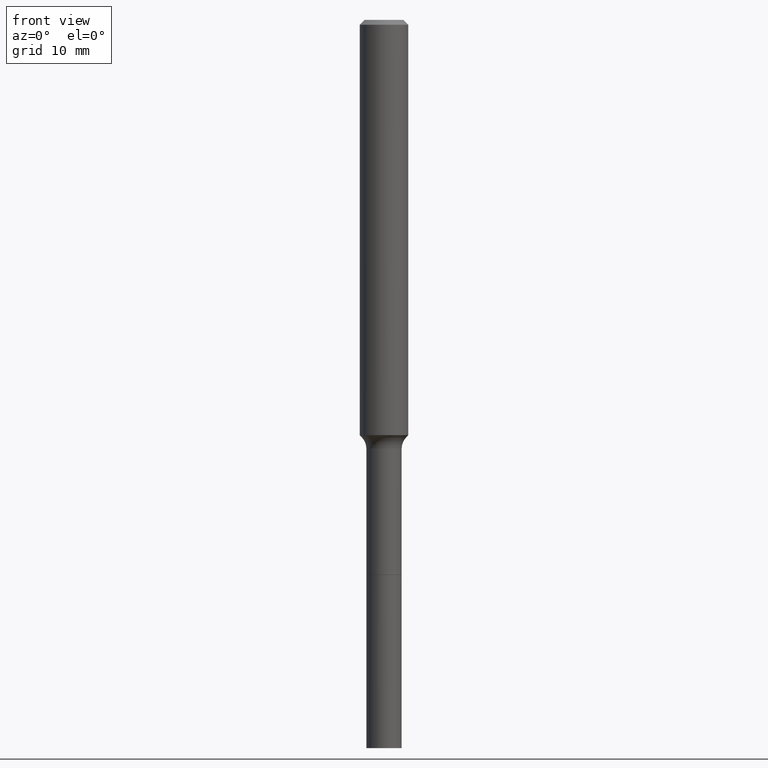
[diagram: clean part render]
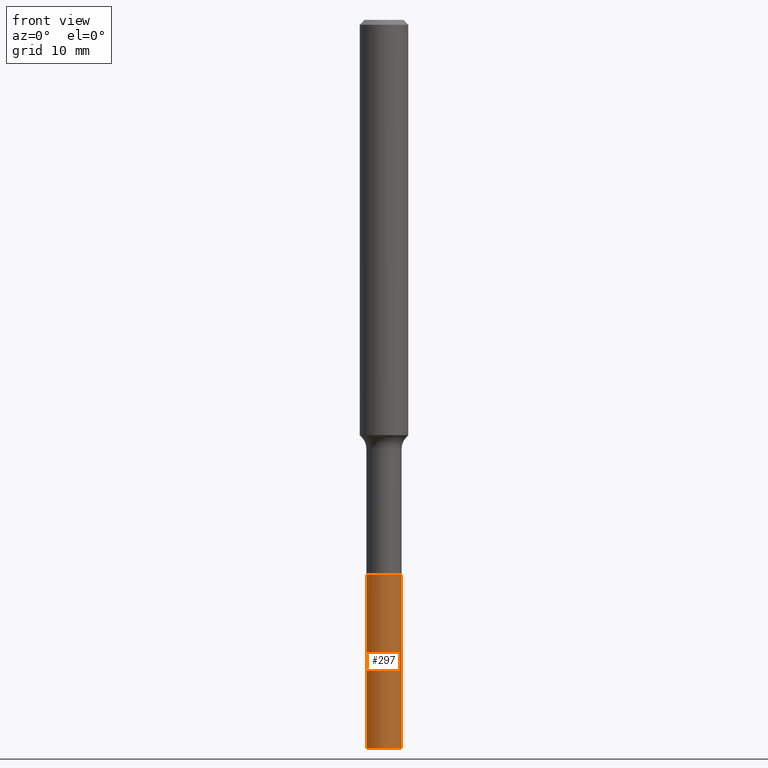
[diagram: same view with one face highlighted and labeled with its STEP entity id]
A machine part, front view. The second image highlights one B-rep face of the part: STEP entity #297.
In plain terms, the highlighted cylindrical surface (edge-blend (fillet) strip) has radius 2.1831 mm, axis along (-0, 0, 1).
Its self-contained STEP definition (entity closure, byte-faithful):
#46 = VECTOR ( 'NONE', #469, 39.37007874015748143 ) ;
#47 = DIRECTION ( 'NONE',  ( -2.445468806185136597E-29, 3.491481338843145583E-15, 1.000000000000000000 ) ) ;
#50 = DIRECTION ( 'NONE',  ( -2.445468806185136877E-29, 3.491481338843145188E-15, 1.000000000000000000 ) ) ;
#57 = CARTESIAN_POINT ( 'NONE',  ( 0.08594999999999998475, -1.002474122008643652E-14, -2.699299999999999589 ) ) ;
#92 = EDGE_CURVE ( 'NONE', #127, #432, #130, .T. ) ;
#100 = VECTOR ( 'NONE', #50, 39.37007874015748143 ) ;
#120 = ORIENTED_EDGE ( 'NONE', *, *, #161, .T. ) ;
#127 = VERTEX_POINT ( 'NONE', #254 ) ;
#130 = LINE ( 'NONE', #226, #100 ) ;
#133 = CYLINDRICAL_SURFACE ( 'NONE', #397, 0.08595000000000010965 ) ;
#141 = AXIS2_PLACEMENT_3D ( 'NONE', #341, #330, #483 ) ;
#160 = LINE ( 'NONE', #365, #46 ) ;
#161 = EDGE_CURVE ( 'NONE', #418, #127, #225, .T. ) ;
#170 = FACE_OUTER_BOUND ( 'NONE', #222, .T. ) ;
#171 = DIRECTION ( 'NONE',  ( 1.000000000000000000, -6.982962677686278543E-15, 0.000000000000000000 ) ) ;
#179 = EDGE_CURVE ( 'NONE', #386, #432, #466, .T. ) ;
#208 = DIRECTION ( 'NONE',  ( -2.445468806185136597E-29, 3.491481338843145583E-15, 1.000000000000000000 ) ) ;
#216 = CARTESIAN_POINT ( 'NONE',  ( -0.08595000000000020679, -1.028724922154529905E-14, -3.543299999999999894 ) ) ;
#222 = EDGE_LOOP ( 'NONE', ( #472, #120, #463, #224 ) ) ;
#224 = ORIENTED_EDGE ( 'NONE', *, *, #179, .F. ) ;
#225 = CIRCLE ( 'NONE', #482, 0.08595000000000020679 ) ;
#226 = CARTESIAN_POINT ( 'NONE',  ( 0.08595000000000010965, -1.002474122008643652E-14, -2.699299999999999589 ) ) ;
#254 = CARTESIAN_POINT ( 'NONE',  ( 0.08595000000000020679, -1.297155147007005288E-14, -3.543299999999999894 ) ) ;
#296 = EDGE_CURVE ( 'NONE', #418, #386, #160, .T. ) ;
#297 = ADVANCED_FACE ( 'NONE', ( #170 ), #133, .T. ) ;
#330 = DIRECTION ( 'NONE',  ( -2.445468806185136597E-29, 3.491481338843145583E-15, 1.000000000000000000 ) ) ;
#341 = CARTESIAN_POINT ( 'NONE',  ( 6.601053948535538665E-29, -9.424555577939300720E-15, -2.699299999999999589 ) ) ;
#362 = CARTESIAN_POINT ( 'NONE',  ( 8.665029620955794069E-29, -1.237136582792291707E-14, -3.543299999999999894 ) ) ;
#365 = CARTESIAN_POINT ( 'NONE',  ( -0.08595000000000010965, -8.813844096553493239E-15, -2.699299999999999589 ) ) ;
#386 = VERTEX_POINT ( 'NONE', #484 ) ;
#397 = AXIS2_PLACEMENT_3D ( 'NONE', #481, #208, #399 ) ;
#399 = DIRECTION ( 'NONE',  ( 1.000000000000000000, -6.982962677686263555E-15, 0.000000000000000000 ) ) ;
#418 = VERTEX_POINT ( 'NONE', #216 ) ;
#432 = VERTEX_POINT ( 'NONE', #57 ) ;
#463 = ORIENTED_EDGE ( 'NONE', *, *, #92, .T. ) ;
#466 = CIRCLE ( 'NONE', #141, 0.08594999999999998475 ) ;
#469 = DIRECTION ( 'NONE',  ( -2.445468806185136877E-29, 3.491481338843145188E-15, 1.000000000000000000 ) ) ;
#472 = ORIENTED_EDGE ( 'NONE', *, *, #296, .F. ) ;
#481 = CARTESIAN_POINT ( 'NONE',  ( 6.601053948535538665E-29, -9.424555577939300720E-15, -2.699299999999999589 ) ) ;
#482 = AXIS2_PLACEMENT_3D ( 'NONE', #362, #47, #171 ) ;
#483 = DIRECTION ( 'NONE',  ( 1.000000000000000000, -6.982962677686273810E-15, 0.000000000000000000 ) ) ;
#484 = CARTESIAN_POINT ( 'NONE',  ( -0.08594999999999998475, -1.028724922154530063E-14, -2.699299999999999589 ) ) ;